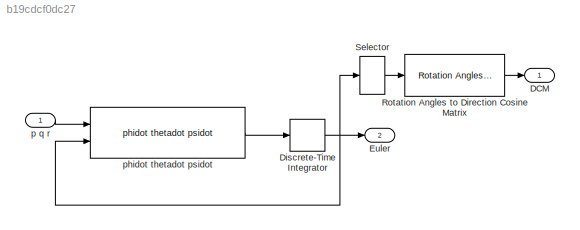
MODEL slx_b19cdcf0dc27
KIND model
CONFIG AbsTol = auto
CONFIG EnableMultiTasking = off
CONFIG FixedStep = auto
CONFIG MaxStep = auto
CONFIG MinStep = auto
CONFIG RelTol = 1e-3
CONFIG SampleTimeConstraint = Unconstrained
CONFIG SolverName = VariableStepAuto
CONFIG StartTime = 0.0
CONFIG StopTime = 10.0
BLOCK [Outport] DCM
  VectorParamsAs1DForOutWhenUnconnected = off
BLOCK [DiscreteIntegrator] Discrete-Time Integrator
  ICPrevOutput = DiscIntNeverNeededParam
  ICPrevScaledInput = DiscIntNeverNeededParam
  InitialConditionSetting = Auto
  Ports = [1, 1]
  SampleTime = SampleTime
BLOCK [Outport] Euler
  Port = 2
  VectorParamsAs1DForOutWhenUnconnected = off
BLOCK [Reference] Rotation Angles to Direction Cosine Matrix  REF=sharedtransform/Rotation Angles to
Direction Cosine Matrix
  AttributesFormatString = Rotation Order: %<rotationOrder>
  Ports = [1, 1]
  SourceBlock = sharedtransform/Rotation Angles to\nDirection Cosine Matrix
  SourceProductBaseCode = AE,PW,MT,UV,VE,VP
  SourceType = Ang2DCM
BLOCK [Selector] Selector
  IndexOptions = Index vector (dialog)
  Indices = [3 2 1]
  InputPortWidth = 3
  OutputSizes = 1
  Ports = [1, 1]
BLOCK [Inport] p q r 
BLOCK [Reference] phidot thetadot psidot  REF=shared6dofsys/DCM & Euler Angles (Euler)/phidot  (lib defined in slx_91fbb8bad28b)
thetadot
psidot
  Ports = [2, 1]
  SourceBlock = shared6dofsys/DCM & Euler Angles (Euler)/phidot\nthetadot\npsidot
  SourceProductBaseCode = AE,PW,MT,UV,VE,VP
  SourceType = SubSystem
NET Discrete-Time Integrator:1 -> Euler:1, Selector:1, phidot thetadot psidot:2
LINE Rotation Angles to Direction Cosine Matrix:1 -> DCM:1
LINE Selector:1 -> Rotation Angles to Direction Cosine Matrix:1
LINE p q r :1 -> phidot thetadot psidot:1
LINE phidot thetadot psidot:1 -> Discrete-Time Integrator:1
note: NET lines group one-source signal fan-out (src -> all destinations, sorted); 1:1 wires keep LINE
